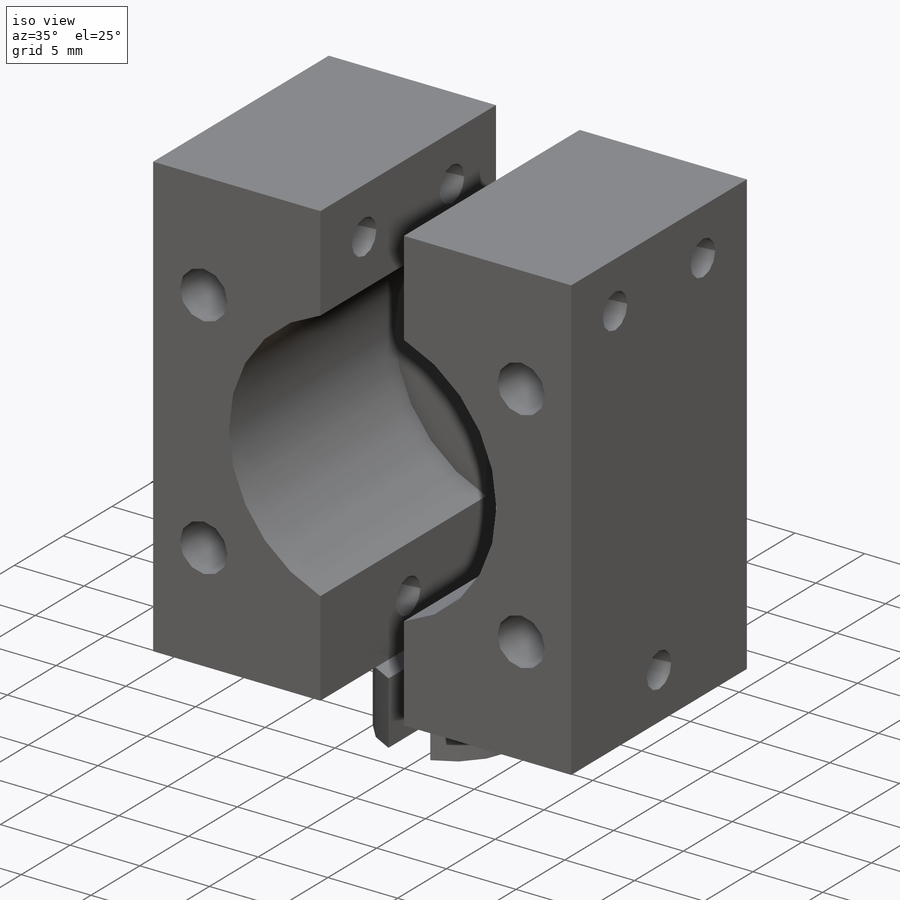
[diagram: iso view]
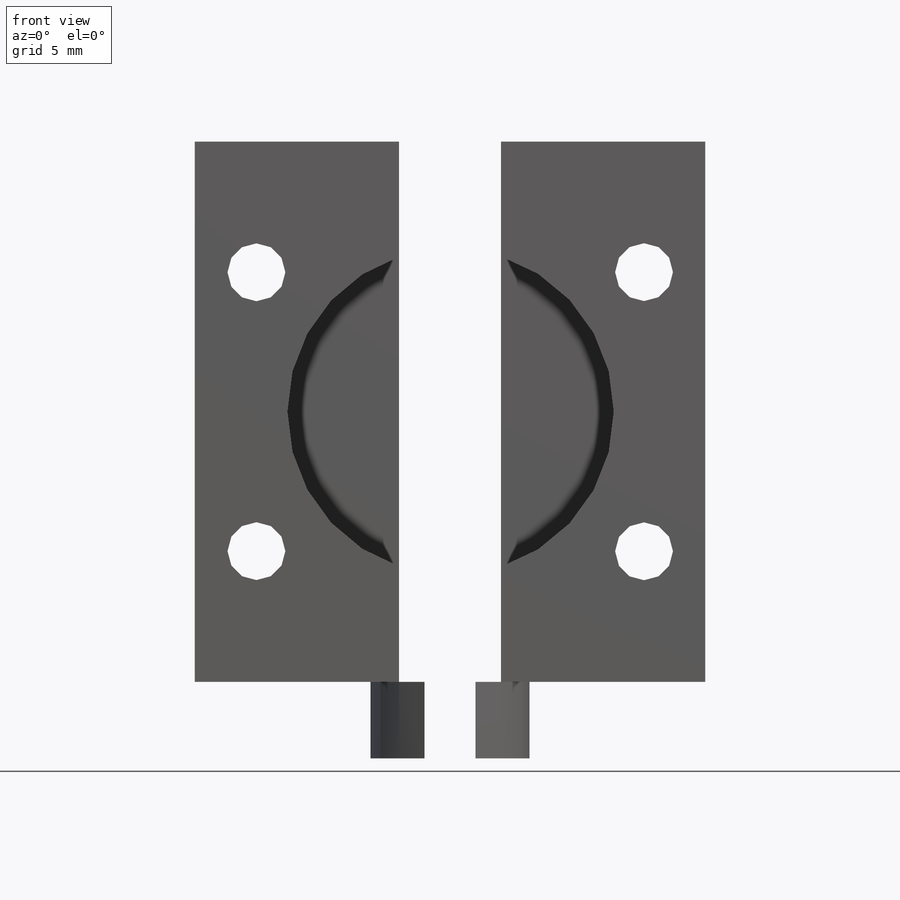
[diagram: front view]
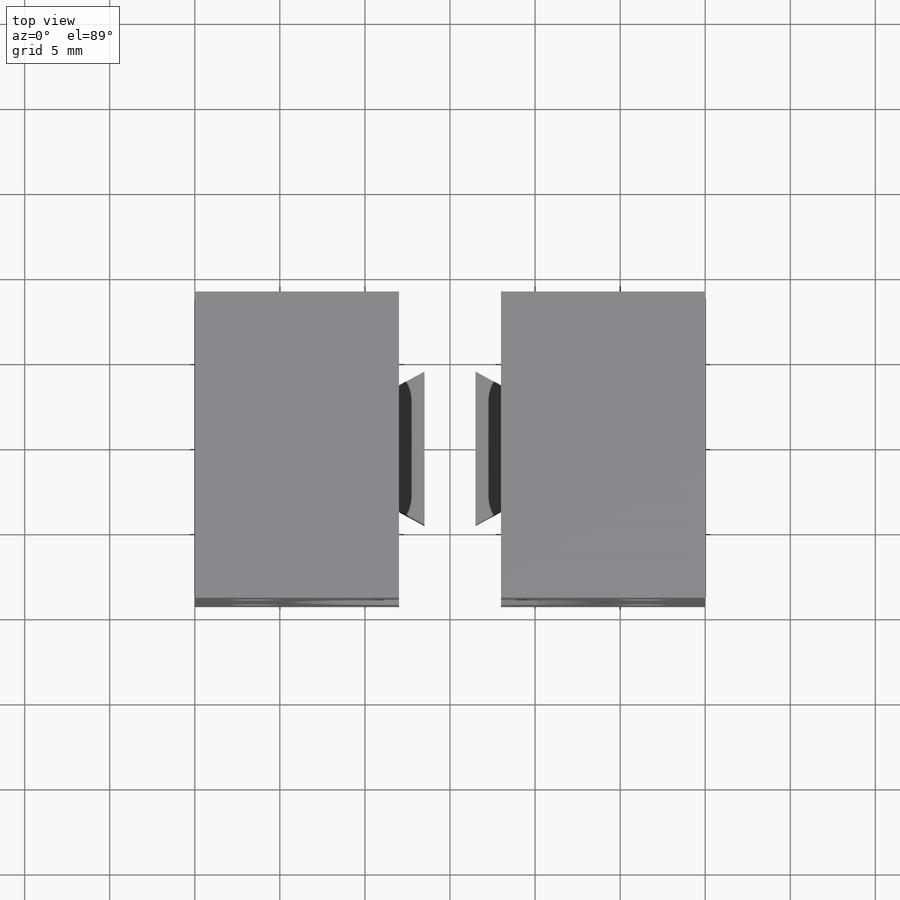
[diagram: top view]
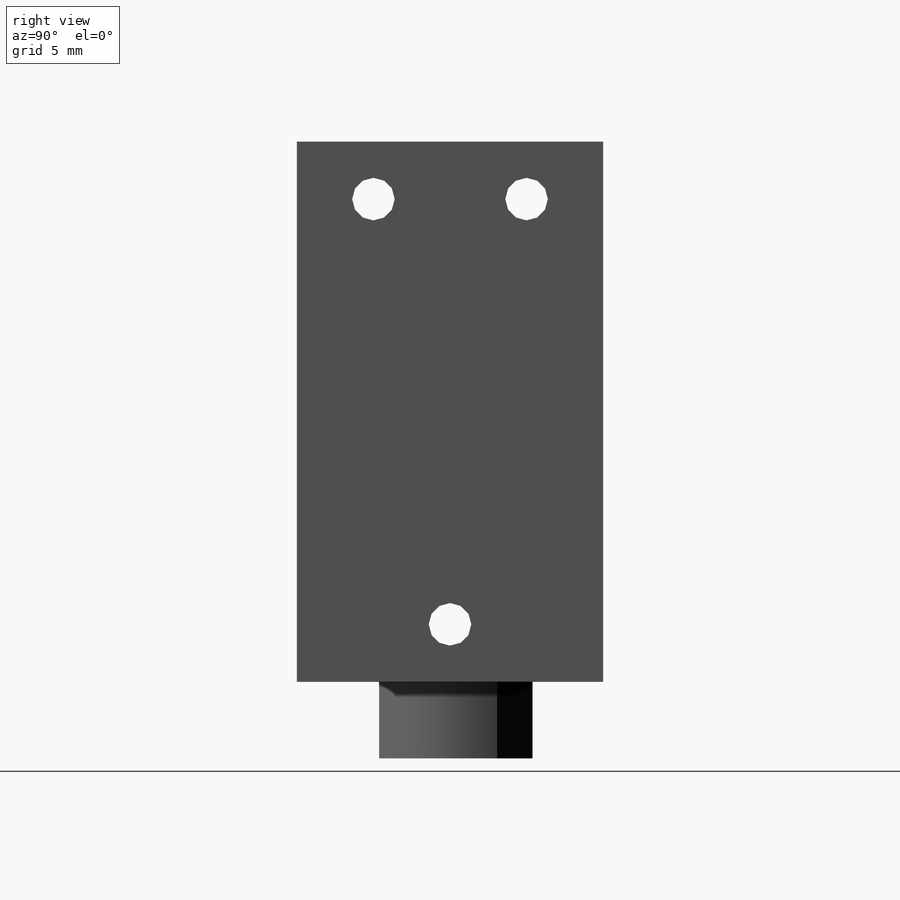
[diagram: right view]
SOLIDWORKS PART (.sldprt)
format: sldprt  version: not decoded by parser v0  size: 299,520 bytes
history: native  units: mm
features: sketch x11, thread x3, plane x2, extrude x2, hole x2, material x1, cut_extrude x1 (+13 scaffold rows collapsed)
feature tree (35):
  scaffold x13  (default folders/planes/origin — collapsed)
  material  "Plain Carbon Steel"
  sketch  "Sketch1"  dims[D1=9.5mm D2=1.5mm]
  plane  "GroundPlane"  Offset=4.5mm
  sketch  "Sketch2"  dims[c1.D1=15.0mm c1.D2=12.5mm c1.D3=25.4mm c1.D4=19.05mm c1.D5=19.05mm c2.D2=~9.891448mm c3.D2=60.0deg c4.D2=~12.46043mm c5.D2=30.0deg c5.D6=15.0mm c6.D6=30.0deg c6.D7=15.0mm c7.D7=30.0deg c7.D8=3.0mm c7.D9=18.0mm c7.D10=12.0mm]
  plane  "TopPlane"  Offset=31.75mm
  extrude  "Extrude1"  Depth=31.75mm
  extrude  "Extrude2"  Depth=4.5mm
  sketch  "Sketch4"  dims[D1=19.177mm]
  cut_extrude  "Extrude3"  Depth=17mm
  sketch  "Sketch6"
  sketch  "Sketch9"  dims[D1=~5.078421mm D2=30.0mm]
  hole  "M3 Clearance Hole1"  Diameter=3.4mm Depth=18mm
  sketch  "3DSketch2"
  sketch  "Sketch11"  dims[hole-wizard template sketch: 60 standard entries collapsed; hole parameters kept: c18.Thru Hole Depth=18.0mm]
  sketch  "Sketch14"
  sketch  "Sketch16"
  hole  "M3x0.5 Tapped Hole1"  Diameter=2.5mm Depth=30mm
  sketch  "3DSketch3"
  sketch  "Sketch18"  dims[hole-wizard template sketch: 61 standard entries collapsed; hole parameters above]
  thread  "Hole Thread6"  Diameter=3mm  [1 undecoded]
  thread  "Hole Thread7"  Diameter=3mm  [1 undecoded]
  thread  "Hole Thread8"  Diameter=3mm  [1 undecoded]
decode coverage: 14 of 19 modeling features carry decoded parameters
note: ~ marks probable driven/reference dimensions
note: 3 parameter values undecoded
note: suppression state not decoded; provenance and decode notes live in map.json
